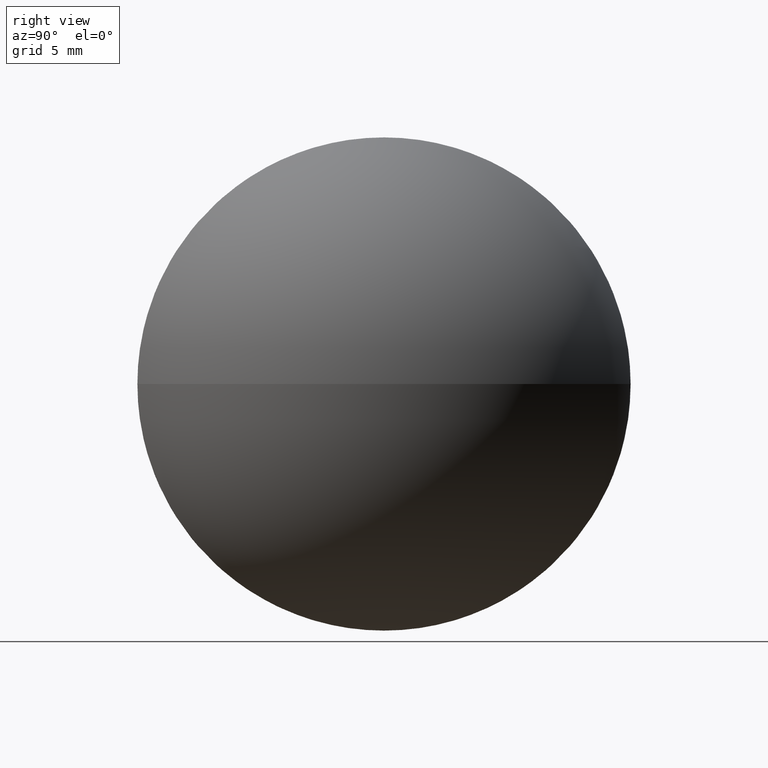
[diagram: clean part render]
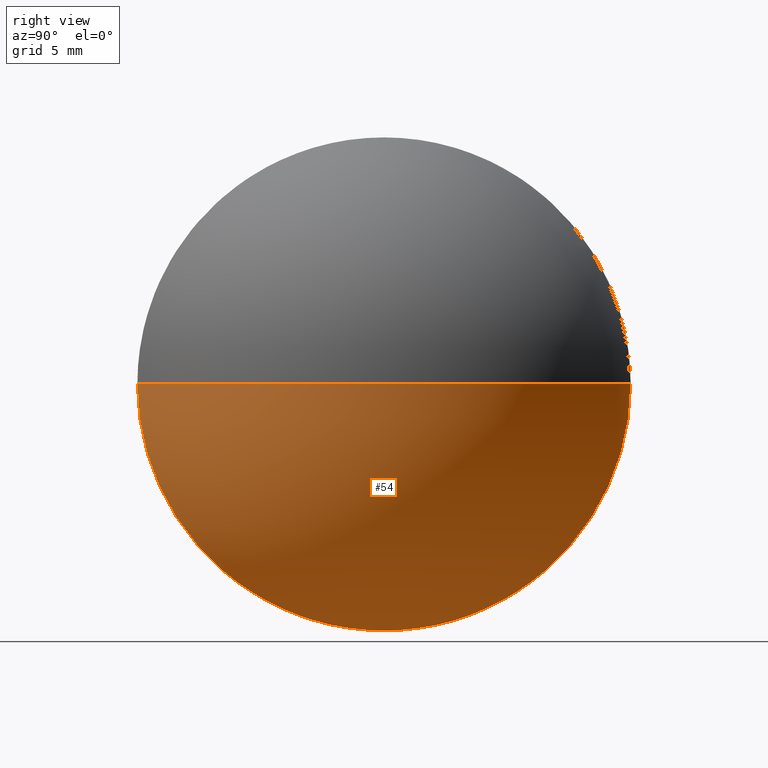
[diagram: same view with one face highlighted and labeled with its STEP entity id]
A machine part, right view. The second image highlights one B-rep face of the part: STEP entity #54.
In plain terms, the highlighted spherical surface has radius 13.1089 mm.
Its self-contained STEP definition (entity closure, byte-faithful):
#1 = AXIS2_PLACEMENT_3D ( 'NONE', #102, #101, #28 ) ;
#2 = CIRCLE ( 'NONE', #84, 13.10893013100433700 ) ;
#3 = ORIENTED_EDGE ( 'NONE', *, *, #18, .F. ) ;
#6 = AXIS2_PLACEMENT_3D ( 'NONE', #166, #80, #110 ) ;
#14 = AXIS2_PLACEMENT_3D ( 'NONE', #72, #105, #71 ) ;
#18 = EDGE_CURVE ( 'NONE', #48, #75, #171, .T. ) ;
#23 = CIRCLE ( 'NONE', #98, 12.49999999999999800 ) ;
#28 = DIRECTION ( 'NONE',  ( 0.0000000000000000000, 0.0000000000000000000, 1.000000000000000000 ) ) ;
#29 = CARTESIAN_POINT ( 'NONE',  ( 520.9202360895284300, 5.104111790186719200, 0.0000000000000000000 ) ) ;
#31 = FACE_OUTER_BOUND ( 'NONE', #107, .T. ) ;
#34 = ORIENTED_EDGE ( 'NONE', *, *, #184, .T. ) ;
#37 = VERTEX_POINT ( 'NONE', #29 ) ;
#41 = ORIENTED_EDGE ( 'NONE', *, *, #77, .F. ) ;
#42 = CARTESIAN_POINT ( 'NONE',  ( 511.7602360895284600, 5.104111790186722800, -12.49999999999999800 ) ) ;
#44 = DIRECTION ( 'NONE',  ( 1.000000000000000000, 0.0000000000000000000, 0.0000000000000000000 ) ) ;
#48 = VERTEX_POINT ( 'NONE', #42 ) ;
#49 = CARTESIAN_POINT ( 'NONE',  ( 511.7602360895284600, 17.60411179018671000, 0.0000000000000000000 ) ) ;
#54 = ADVANCED_FACE ( 'NONE', ( #31 ), #117, .T. ) ;
#71 = DIRECTION ( 'NONE',  ( 0.0000000000000000000, 1.000000000000000000, 0.0000000000000000000 ) ) ;
#72 = CARTESIAN_POINT ( 'NONE',  ( 507.8113059585240900, 5.104111790186718300, 0.0000000000000000000 ) ) ;
#75 = VERTEX_POINT ( 'NONE', #132 ) ;
#77 = EDGE_CURVE ( 'NONE', #125, #48, #23, .T. ) ;
#80 = DIRECTION ( 'NONE',  ( 0.0000000000000000000, 1.224646799147353200E-016, -1.000000000000000000 ) ) ;
#84 = AXIS2_PLACEMENT_3D ( 'NONE', #183, #93, #44 ) ;
#93 = DIRECTION ( 'NONE',  ( -0.0000000000000000000, 0.0000000000000000000, 1.000000000000000000 ) ) ;
#98 = AXIS2_PLACEMENT_3D ( 'NONE', #130, #116, #161 ) ;
#101 = DIRECTION ( 'NONE',  ( -1.000000000000000000, -0.0000000000000000000, -0.0000000000000000000 ) ) ;
#102 = CARTESIAN_POINT ( 'NONE',  ( 511.7602360895284600, 5.104111790186721000, 0.0000000000000000000 ) ) ;
#105 = DIRECTION ( 'NONE',  ( -0.0000000000000000000, 0.0000000000000000000, -1.000000000000000000 ) ) ;
#107 = EDGE_LOOP ( 'NONE', ( #162, #34, #3, #41 ) ) ;
#110 = DIRECTION ( 'NONE',  ( 0.0000000000000000000, 1.000000000000000000, 1.224646799147353200E-016 ) ) ;
#116 = DIRECTION ( 'NONE',  ( -1.000000000000000000, -0.0000000000000000000, -0.0000000000000000000 ) ) ;
#117 = SPHERICAL_SURFACE ( 'NONE', #14, 13.10893013100435700 ) ;
#125 = VERTEX_POINT ( 'NONE', #49 ) ;
#130 = CARTESIAN_POINT ( 'NONE',  ( 511.7602360895284600, 5.104111790186721000, 0.0000000000000000000 ) ) ;
#132 = CARTESIAN_POINT ( 'NONE',  ( 511.7602360895284600, -7.395888209813271000, -1.530808498934190100E-015 ) ) ;
#143 = CIRCLE ( 'NONE', #6, 13.10893013100435500 ) ;
#145 = EDGE_CURVE ( 'NONE', #37, #125, #2, .T. ) ;
#161 = DIRECTION ( 'NONE',  ( 0.0000000000000000000, 0.0000000000000000000, 1.000000000000000000 ) ) ;
#162 = ORIENTED_EDGE ( 'NONE', *, *, #145, .F. ) ;
#166 = CARTESIAN_POINT ( 'NONE',  ( 507.8113059585240900, 5.104111790186718300, 0.0000000000000000000 ) ) ;
#171 = CIRCLE ( 'NONE', #1, 12.49999999999999800 ) ;
#183 = CARTESIAN_POINT ( 'NONE',  ( 507.8113059585240900, 5.104111790186718300, 0.0000000000000000000 ) ) ;
#184 = EDGE_CURVE ( 'NONE', #37, #75, #143, .T. ) ;